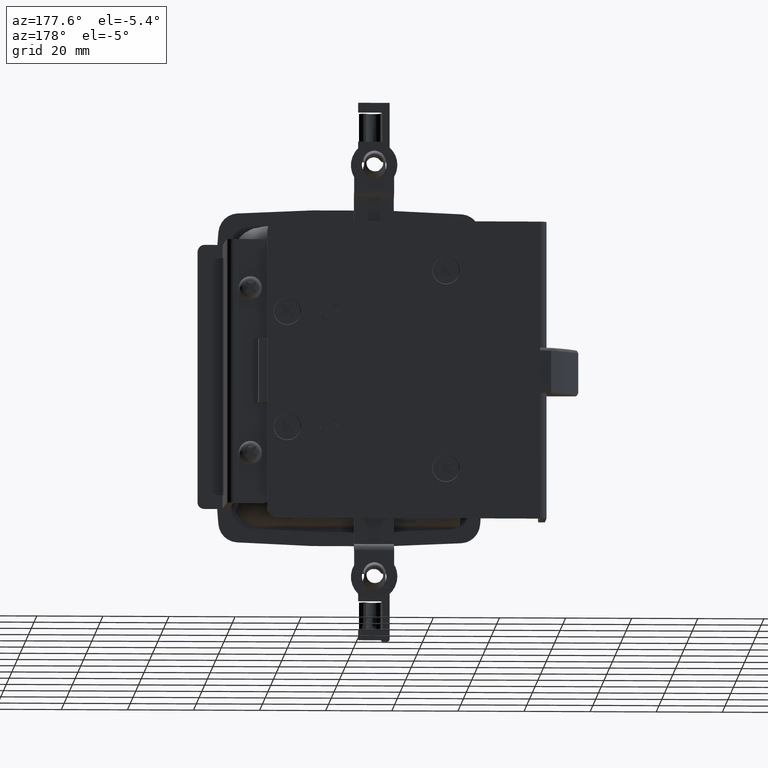
[diagram: clean part render]
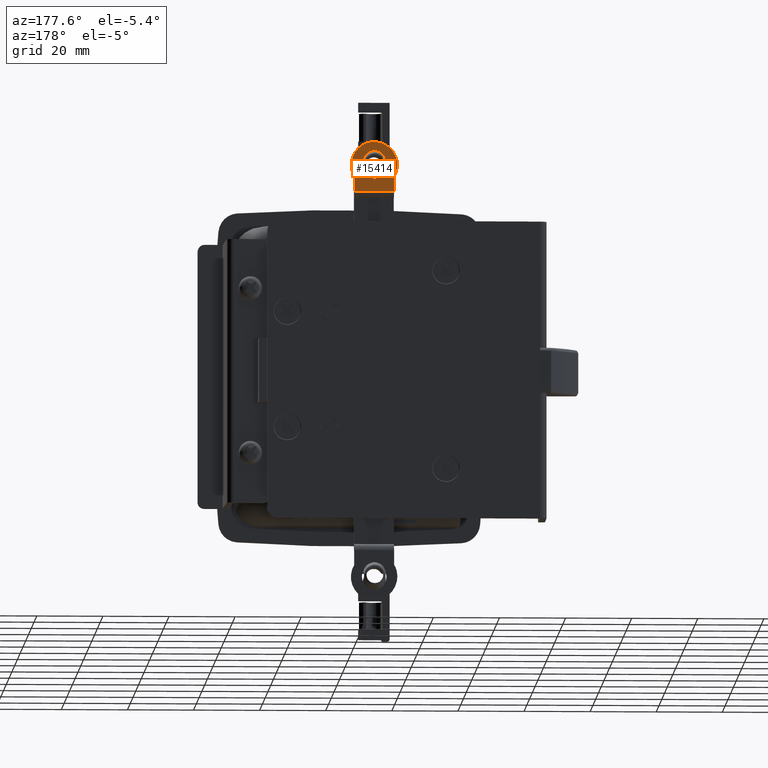
[diagram: same view with one face highlighted and labeled with its STEP entity id]
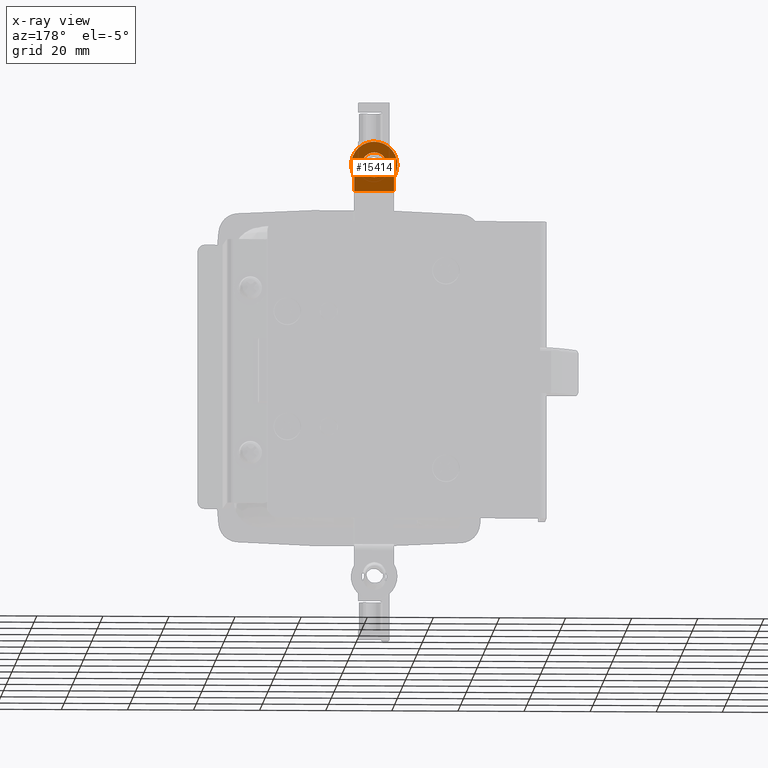
[diagram: x-ray of the same camera — body ghosted, the highlighted face saturated]
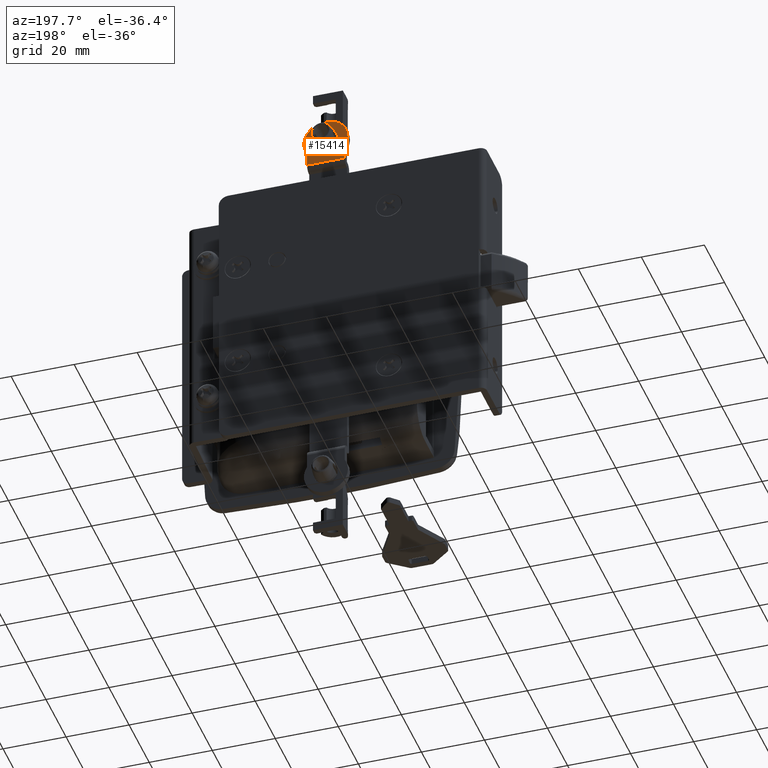
[diagram: same view with one face highlighted and labeled with its STEP entity id]
A machine part, auxiliary view. The second image highlights one B-rep face of the part: STEP entity #15414.
The next image is the same camera in x-ray: the body ghosted, the highlighted face saturated — about 0% of this face is hidden behind the body in this view.
A second angle (auxiliary view) of the same face is appended — the face is thin or edge-on in the first view.
In plain terms, the highlighted face is a freeform B-spline surface patch.
Its self-contained STEP definition (entity closure, byte-faithful):
#14644=CARTESIAN_POINT('',(-3.871589778544037,-4.900000000000000,65.174689517537075));
#14645=VERTEX_POINT('',#14644);
#14651=CARTESIAN_POINT('',(-2.750000000000794,-4.900000000000000,62.500002297671401));
#14652=VERTEX_POINT('',#14651);
#14653=CARTESIAN_POINT('',(-2.750000000000794,-4.900000000000000,62.500002297671401));
#14654=CARTESIAN_POINT('',(-2.749869467778255,-4.900000000000006,62.841238973119808));
#14655=CARTESIAN_POINT('',(-2.831045319421439,-4.899999999999994,63.430555248674104));
#14656=CARTESIAN_POINT('',(-3.193798524149857,-4.900000000000011,64.359841262480344));
#14657=CARTESIAN_POINT('',(-3.583791720698540,-4.899999999999985,64.892164943158008));
#14658=CARTESIAN_POINT('',(-3.871589778544037,-4.900000000000000,65.174689517537075));
#14659=B_SPLINE_CURVE_WITH_KNOTS('',3,(#14653,#14654,#14655,#14656,#14657,#14658),.UNSPECIFIED.,.F.,.U.,(4,1,1,4),(0.000000023846594,1.023703351320984,1.768211897635750,2.978042255195709),.UNSPECIFIED.);
#14660=EDGE_CURVE('',#14652,#14645,#14659,.T.);
#14662=CARTESIAN_POINT('',(-6.500000000000090,-4.900000000000000,58.750000000000000));
#14663=VERTEX_POINT('',#14662);
#14664=CARTESIAN_POINT('',(-6.500000000000090,-4.900000000000000,58.750000000000000));
#14665=CARTESIAN_POINT('',(-6.101124814627513,-4.899999999999993,58.749746316244831));
#14666=CARTESIAN_POINT('',(-5.518388410709183,-4.900000000000007,58.843941230409960));
#14667=CARTESIAN_POINT('',(-4.694135482828667,-4.900000000000004,59.185322007635449));
#14668=CARTESIAN_POINT('',(-4.051585891707886,-4.899999999999981,59.614637169054902));
#14669=CARTESIAN_POINT('',(-3.526426390235441,-4.900000000000008,60.180044875385882));
#14670=CARTESIAN_POINT('',(-3.147893318569860,-4.899999999999996,60.777832491893783));
#14671=CARTESIAN_POINT('',(-2.841125127210035,-4.899999999999999,61.518336233028123));
#14672=CARTESIAN_POINT('',(-2.749826949213472,-4.900000000000001,62.131830379593723));
#14673=CARTESIAN_POINT('',(-2.750000000000794,-4.900000000000000,62.500002297671401));
#14674=B_SPLINE_CURVE_WITH_KNOTS('',3,(#14664,#14665,#14666,#14667,#14668,#14669,#14670,#14671,#14672,#14673),.UNSPECIFIED.,.F.,.U.,(4,1,1,1,1,1,1,4),(0.000000053845891,1.196526419900230,1.748790916680973,2.669195189180342,3.497549420668077,4.049797881490112,4.786155180378980,5.890635336292656),.UNSPECIFIED.);
#14675=EDGE_CURVE('',#14663,#14652,#14674,.T.);
#14677=CARTESIAN_POINT('',(-10.249999999999380,-4.900000000000000,62.499997702328614));
#14678=VERTEX_POINT('',#14677);
#14679=CARTESIAN_POINT('',(-10.249999999999380,-4.900000000000000,62.499997702328614));
#14680=CARTESIAN_POINT('',(-10.250077031074110,-4.899999999999998,62.193200536012220));
#14681=CARTESIAN_POINT('',(-10.185619464418121,-4.900000000000003,61.671688581842822));
#14682=CARTESIAN_POINT('',(-9.935192223041131,-4.899999999999997,60.943725636005723));
#14683=CARTESIAN_POINT('',(-9.600894020243779,-4.899999999999999,60.353623308746769));
#14684=CARTESIAN_POINT('',(-9.144917999067609,-4.900000000000015,59.811697754493537));
#14685=CARTESIAN_POINT('',(-8.644481072296991,-4.899999999999963,59.401017914832543));
#14686=CARTESIAN_POINT('',(-8.055611331545501,-4.900000000000047,59.067425878209868));
#14687=CARTESIAN_POINT('',(-7.359002713015476,-4.899999999999976,58.818142921874603));
#14688=CARTESIAN_POINT('',(-6.806793083628841,-4.899999999999993,58.749931639693642));
#14689=CARTESIAN_POINT('',(-6.500000000000090,-4.900000000000000,58.750000000000000));
#14690=B_SPLINE_CURVE_WITH_KNOTS('',3,(#14679,#14680,#14681,#14682,#14683,#14684,#14685,#14686,#14687,#14688,#14689),.UNSPECIFIED.,.F.,.U.,(4,1,1,1,1,1,1,1,4),(0.000000056993248,0.920390950422126,1.564703744986675,2.301035329385321,2.945316428471872,3.681627436672732,4.233884629473710,4.970239020529819,5.890632746216922),.UNSPECIFIED.);
#14691=EDGE_CURVE('',#14678,#14663,#14690,.T.);
#14693=CARTESIAN_POINT('',(-9.174688695968005,-4.900000000000000,65.128409418675744));
#14694=VERTEX_POINT('',#14693);
#14695=CARTESIAN_POINT('',(-9.174688695968005,-4.900000000000000,65.128409418675744));
#14696=CARTESIAN_POINT('',(-9.344824267324702,-4.900000000000000,64.955311763156487));
#14697=CARTESIAN_POINT('',(-9.670472498553890,-4.900000000000002,64.552234473484077));
#14698=CARTESIAN_POINT('',(-10.115729602354770,-4.899999999999997,63.682969376851062));
#14699=CARTESIAN_POINT('',(-10.250420118056111,-4.900000000000004,62.955147669777602));
#14700=CARTESIAN_POINT('',(-10.249999999999380,-4.900000000000000,62.499997702328614));
#14701=B_SPLINE_CURVE_WITH_KNOTS('',3,(#14695,#14696,#14697,#14698,#14699,#14700),.UNSPECIFIED.,.F.,.U.,(4,1,1,4),(0.000000038758219,0.728147990937514,1.547308387907130,2.912591847650336),.UNSPECIFIED.);
#14702=EDGE_CURVE('',#14694,#14678,#14701,.T.);
#14738=CARTESIAN_POINT('',(-6.500000000000090,-4.900000000000000,66.250000000000000));
#14739=VERTEX_POINT('',#14738);
#14740=CARTESIAN_POINT('',(-6.500000000000090,-4.900000000000000,66.250000000000000));
#14741=CARTESIAN_POINT('',(-6.903309459873317,-4.900000000000007,66.250260881711313));
#14742=CARTESIAN_POINT('',(-7.430491936542099,-4.899999999999994,66.164092010697118));
#14743=CARTESIAN_POINT('',(-8.356367234470497,-4.900000000000000,65.802646353632994));
#14744=CARTESIAN_POINT('',(-8.848803208720945,-4.900000000000006,65.460661340365448));
#14745=CARTESIAN_POINT('',(-9.174688695968005,-4.900000000000000,65.128409418675744));
#14746=B_SPLINE_CURVE_WITH_KNOTS('',3,(#14740,#14741,#14742,#14743,#14744,#14745),.UNSPECIFIED.,.F.,.U.,(4,1,1,4),(0.000000023785653,1.209832079599368,1.582085412615384,2.978044093680145),.UNSPECIFIED.);
#14747=EDGE_CURVE('',#14739,#14694,#14746,.T.);
#14749=CARTESIAN_POINT('',(-3.871589778544037,-4.900000000000000,65.174689517537075));
#14750=CARTESIAN_POINT('',(-4.109543480851227,-4.900000000000000,65.408703819188773));
#14751=CARTESIAN_POINT('',(-4.526055276608075,-4.899999999999997,65.720590656546293));
#14752=CARTESIAN_POINT('',(-5.408026420414804,-4.900000000000001,66.132573091300173));
#14753=CARTESIAN_POINT('',(-6.044845060574391,-4.900000000000002,66.250393228354582));
#14754=CARTESIAN_POINT('',(-6.500000000000090,-4.900000000000000,66.250000000000000));
#14755=B_SPLINE_CURVE_WITH_KNOTS('',3,(#14749,#14750,#14751,#14752,#14753,#14754),.UNSPECIFIED.,.F.,.U.,(4,1,1,4),(0.000000038703818,1.001213062575370,1.547307402357771,2.912589992624707),.UNSPECIFIED.);
#14756=EDGE_CURVE('',#14645,#14739,#14755,.T.);
#15181=CARTESIAN_POINT('',(-12.500000000000000,-4.900000000000000,54.499000000000002));
#15182=VERTEX_POINT('',#15181);
#15197=CARTESIAN_POINT('',(-0.500000000000056,-4.900000000000000,54.499000000000002));
#15198=VERTEX_POINT('',#15197);
#15199=CARTESIAN_POINT('',(-0.500000000000056,-4.900000000000000,54.499000000000002));
#15200=CARTESIAN_POINT('',(-12.500000000000000,-4.900000000000000,54.499000000000002));
#15201=QUASI_UNIFORM_CURVE('',1,(#15199,#15200),.UNSPECIFIED.,.F.,.U.);
#15202=EDGE_CURVE('',#15198,#15182,#15201,.T.);
#15336=CARTESIAN_POINT('',(-0.500000000000085,-4.900000000000000,58.894448724535998));
#15337=VERTEX_POINT('',#15336);
#15343=CARTESIAN_POINT('',(-6.500003191556548,-4.900000000000000,69.499999999999275));
#15344=VERTEX_POINT('',#15343);
#15345=CARTESIAN_POINT('',(-0.500000000000085,-4.900000000000000,58.894448724535998));
#15346=CARTESIAN_POINT('',(-0.102975229144970,-4.900000000000022,59.554226706730347));
#15347=CARTESIAN_POINT('',(0.354941417615049,-4.899999999999960,60.715912192105073));
#15348=CARTESIAN_POINT('',(0.540938256670316,-4.900000000000042,62.369087540527303));
#15349=CARTESIAN_POINT('',(0.447968374984194,-4.899999999999949,63.563848416774881));
#15350=CARTESIAN_POINT('',(0.152374374274755,-4.900000000000035,64.802270714048305));
#15351=CARTESIAN_POINT('',(-0.395560701927280,-4.899999999999971,66.043080328373875));
#15352=CARTESIAN_POINT('',(-1.410994645447734,-4.900000000000000,67.411129889707425));
#15353=CARTESIAN_POINT('',(-2.645654717248984,-4.899999999999977,68.419275955571010));
#15354=CARTESIAN_POINT('',(-3.827186809504042,-4.899999999999994,68.995163498424233));
#15355=CARTESIAN_POINT('',(-5.037182927446248,-4.900000000000033,69.387460163042135));
#15356=CARTESIAN_POINT('',(-5.884013940240913,-4.899999999999996,69.500212448554038));
#15357=CARTESIAN_POINT('',(-6.500003191556548,-4.900000000000000,69.499999999999275));
#15358=B_SPLINE_CURVE_WITH_KNOTS('',3,(#15345,#15346,#15347,#15348,#15349,#15350,#15351,#15352,#15353,#15354,#15355,#15356,#15357),.UNSPECIFIED.,.F.,.U.,(4,1,1,1,1,1,1,1,1,1,4),(0.000000159609687,2.309882653572318,3.695860948119117,4.966337843422751,5.890318726524797,7.507192993184605,9.008612246230362,10.972084711200241,12.242564521706910,12.935543281343170,14.783441825222919),.UNSPECIFIED.);
#15359=EDGE_CURVE('',#15337,#15344,#15358,.T.);
#15361=CARTESIAN_POINT('',(-12.500000000000000,-4.900000000000000,58.894448724535998));
#15362=VERTEX_POINT('',#15361);
#15363=CARTESIAN_POINT('',(-6.500003191556548,-4.900000000000000,69.499999999999275));
#15364=CARTESIAN_POINT('',(-7.038960564365285,-4.900000000000005,69.500069873232178));
#15365=CARTESIAN_POINT('',(-8.193933128302746,-4.899999999999993,69.366104515897547));
#15366=CARTESIAN_POINT('',(-9.682332762416662,-4.899999999999999,68.800716546791335));
#15367=CARTESIAN_POINT('',(-11.067592058024459,-4.900000000000000,67.881797176679697));
#15368=CARTESIAN_POINT('',(-12.167226949244940,-4.900000000000024,66.730337779882461));
#15369=CARTESIAN_POINT('',(-12.949494336543820,-4.899999999999963,65.347253010436077));
#15370=CARTESIAN_POINT('',(-13.419178125059430,-4.899999999999991,63.874035347820332));
#15371=CARTESIAN_POINT('',(-13.576175297014190,-4.900000000000031,62.213264461625712));
#15372=CARTESIAN_POINT('',(-13.273741408555910,-4.900000000000008,60.450622573738443));
#15373=CARTESIAN_POINT('',(-12.777653696832560,-4.900000000000000,59.356379346454233));
#15374=CARTESIAN_POINT('',(-12.500000000000000,-4.900000000000000,58.894448724535998));
#15375=B_SPLINE_CURVE_WITH_KNOTS('',3,(#15363,#15364,#15365,#15366,#15367,#15368,#15369,#15370,#15371,#15372,#15373,#15374),.UNSPECIFIED.,.F.,.U.,(4,1,1,1,1,1,1,1,1,4),(0.000000159567133,1.616907992797973,3.464867295273448,4.735343715969037,6.583307181251982,8.200131246117177,9.470634851497636,11.203073245966021,13.166544863093010,14.783435441893030),.UNSPECIFIED.);
#15376=EDGE_CURVE('',#15344,#15362,#15375,.T.);
#15386=CARTESIAN_POINT('',(-14.197445161107000,-4.900000000000000,70.249299867330279));
#15387=CARTESIAN_POINT('',(1.197418272872779,-4.900000000000000,70.249299867330279));
#15388=CARTESIAN_POINT('',(-14.197445161107000,-4.900000000000000,53.749700803265938));
#15389=CARTESIAN_POINT('',(1.197418272872779,-4.900000000000000,53.749700803265938));
#15390=B_SPLINE_SURFACE_WITH_KNOTS('',1,1,((#15386,#15388),(#15387,#15389)),.UNSPECIFIED.,.F.,.F.,.U.,(2,2),(2,2),(0.0,15.394863433979779),(0.0,16.499599064064341),.UNSPECIFIED.);
#15391=ORIENTED_EDGE('',*,*,#15202,.T.);
#15392=CARTESIAN_POINT('',(-12.500000000000000,-4.900000000000000,58.894448724535998));
#15393=CARTESIAN_POINT('',(-12.500000000000000,-4.900000000000000,54.499000000000002));
#15394=QUASI_UNIFORM_CURVE('',1,(#15392,#15393),.UNSPECIFIED.,.F.,.U.);
#15395=EDGE_CURVE('',#15362,#15182,#15394,.T.);
#15396=ORIENTED_EDGE('',*,*,#15395,.F.);
#15397=ORIENTED_EDGE('',*,*,#15376,.F.);
#15398=ORIENTED_EDGE('',*,*,#15359,.F.);
#15399=CARTESIAN_POINT('',(-0.500000000000056,-4.900000000000000,54.499000000000002));
#15400=CARTESIAN_POINT('',(-0.500000000000085,-4.900000000000000,58.894448724535998));
#15401=QUASI_UNIFORM_CURVE('',1,(#15399,#15400),.UNSPECIFIED.,.F.,.U.);
#15402=EDGE_CURVE('',#15198,#15337,#15401,.T.);
#15403=ORIENTED_EDGE('',*,*,#15402,.F.);
#15404=EDGE_LOOP('',(#15391,#15396,#15397,#15398,#15403));
#15405=FACE_OUTER_BOUND('',#15404,.T.);
#15406=ORIENTED_EDGE('',*,*,#14691,.T.);
#15407=ORIENTED_EDGE('',*,*,#14675,.T.);
#15408=ORIENTED_EDGE('',*,*,#14660,.T.);
#15409=ORIENTED_EDGE('',*,*,#14756,.T.);
#15410=ORIENTED_EDGE('',*,*,#14747,.T.);
#15411=ORIENTED_EDGE('',*,*,#14702,.T.);
#15412=EDGE_LOOP('',(#15406,#15407,#15408,#15409,#15410,#15411));
#15413=FACE_BOUND('',#15412,.T.);
#15414=ADVANCED_FACE('',(#15405,#15413),#15390,.T.);